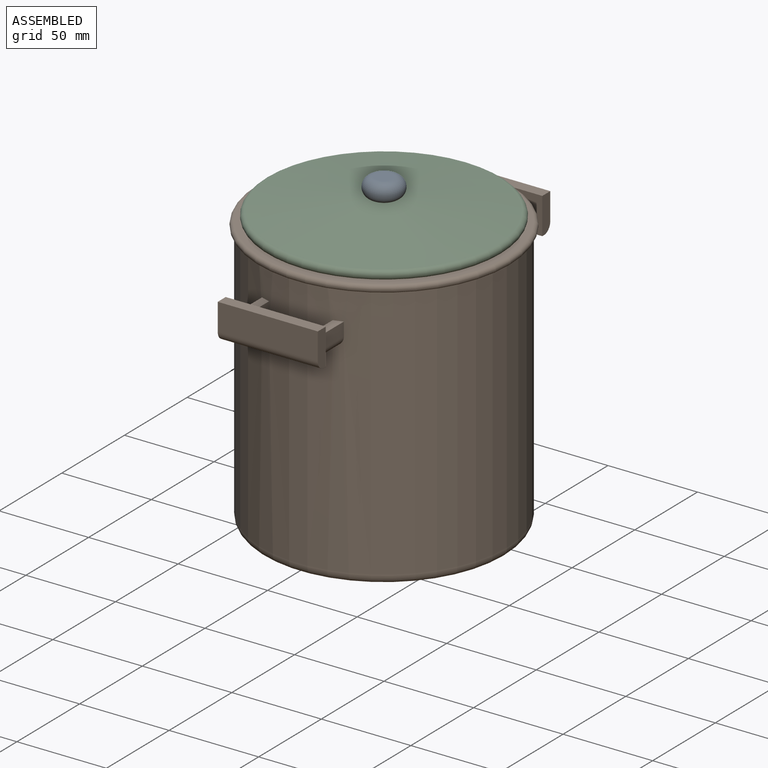
[diagram: assembled view]
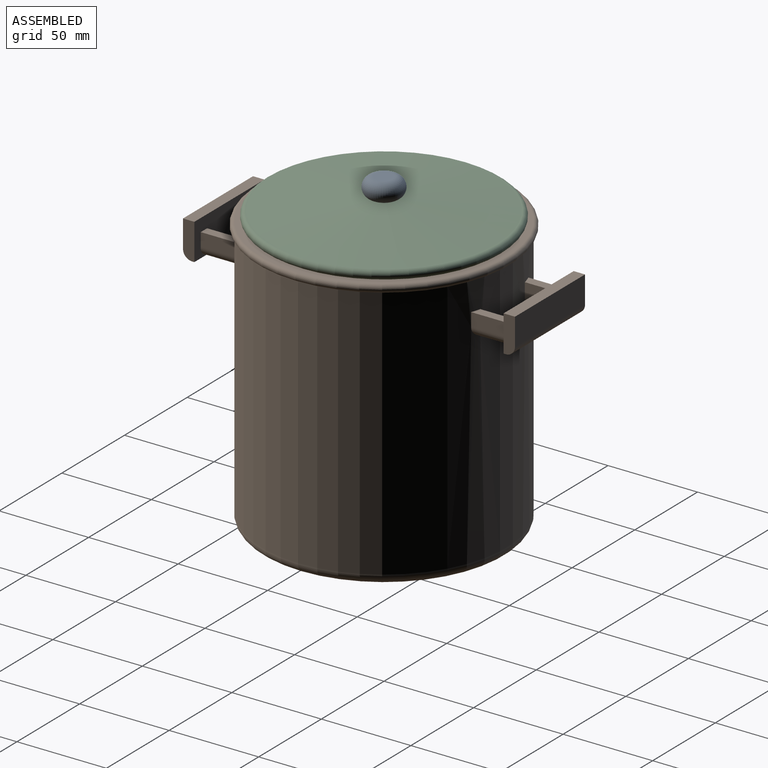
[diagram: assembled view, second angle]
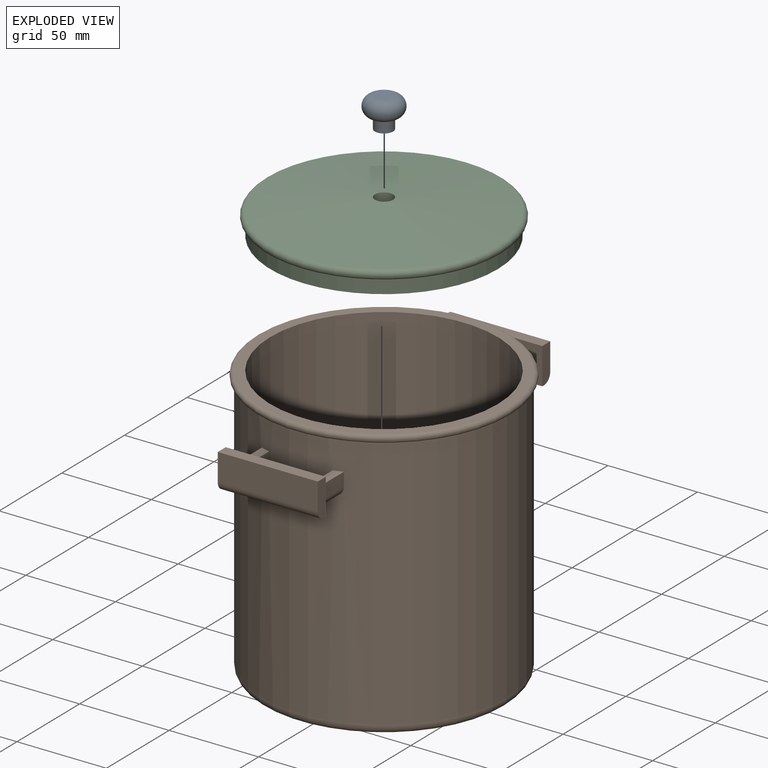
[diagram: exploded view]
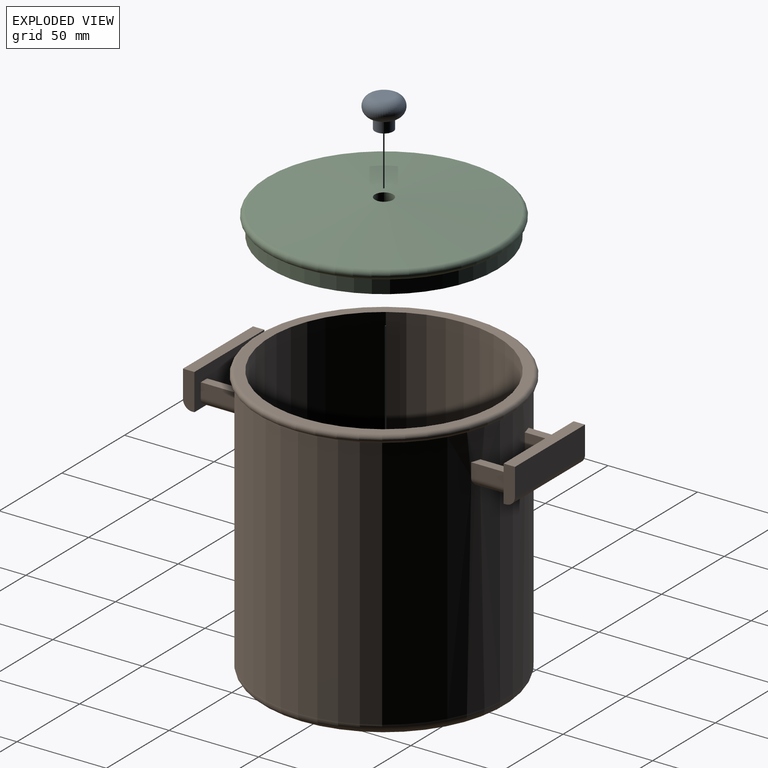
[diagram: exploded view, second angle]
ASSEMBLY  parts=3 mates=2
PART A: 4 faces, bbox 20.6x20.6x16.8 mm
  f0: torus R=5.08mm, axis (0,0,1), area 871.5mm2, adj f1,f3
  f1: plane 10.16x10.16mm, normal (0,0,1), area 81.1mm2, adj f0
  f2: plane 10.16x10.16mm, normal (0,0,-1), area 81.1mm2, adj f3
  f3: cylinder r=5.08mm len=10.16mm, axis (0,0,1), area 202.7mm2, adj f0,f2
PART B: 37 faces, bbox 153.1x185.4x152.4 mm
  f0: cylinder r=68.58mm len=142.59mm, axis (0,0,-1), area 61193.5mm2, adj f2,f3,f7,f8,f9,f10,f11,f12
  f1: plane 126.64x126.64mm, normal (0,0,-1), area 12596mm2, adj f2
  f2: torus R=63.58mm, axis (0,0,-1), area 3653.6mm2, adj f0,f1
  f3: torus R=68.58mm, axis (0,0,-1), area 2931.3mm2, adj f0,f4
  f4: plane 137.16x137.16mm, normal (0,0,1), area 2107.9mm2, adj f3,f5
  f5: cylinder r=63.5mm len=147.32mm, axis (0,0,-1), area 58778.1mm2, adj f4,f6
  f6: plane 127x127mm, normal (0,0,1), area 12667.7mm2, adj f5
  f7: plane 20.13x12.7mm, normal (1,0,0), area 255.6mm2, adj f0,f8,f13,f36
  f8: plane 21.7x5.08mm, normal (0,0,1), area 106.1mm2, adj f0,f7,f9,f13
  f9: plane 21.7x7.62mm, normal (-1,0,0), area 165.4mm2, adj f0,f8,f13,f36
  f10: plane 20.13x12.7mm, normal (-1,0,0), area 255.6mm2, adj f0,f12,f13,f35
  f11: plane 21.7x7.62mm, normal (1,0,0), area 165.4mm2, adj f0,f12,f13,f35
  f12: plane 21.7x5.08mm, normal (0,0,1), area 106.1mm2, adj f0,f10,f11,f13
  f13: plane 55.88x20.32mm, normal (0,1,0), area 1017.5mm2, adj f7,f8,f9,f10,f11,f12,f14,f16
  f14: plane 55.88x1.27mm, normal (0,0,-1), area 71mm2, adj f13,f16,f17,f31
  f15: plane 55.88x15.24mm, normal (0,-1,0), area 851.6mm2, adj f16,f17,f18,f31
  f16: plane 20.32x6.35mm, normal (-1,0,0), area 123.5mm2, adj f13,f14,f15,f18,f31
  f17: plane 20.32x6.35mm, normal (1,0,0), area 123.5mm2, adj f13,f14,f15,f18,f31
  f18: plane 55.88x6.35mm, normal (0,0,1), area 354.8mm2, adj f13,f15,f16,f17
  f19: plane 21.7x7.62mm, normal (1,0,0), area 165.4mm2, adj f0,f20,f25,f34
  f20: plane 21.7x5.08mm, normal (0,0,1), area 106.1mm2, adj f0,f19,f21,f25
  f21: plane 20.13x12.7mm, normal (-1,0,0), area 255.6mm2, adj f0,f20,f25,f34
  f22: plane 20.13x12.7mm, normal (1,0,0), area 255.6mm2, adj f0,f24,f25,f33
  f23: plane 21.7x7.62mm, normal (-1,0,0), area 165.4mm2, adj f0,f24,f25,f33
  f24: plane 21.7x5.08mm, normal (0,0,1), area 106.1mm2, adj f0,f22,f23,f25
  f25: plane 55.88x20.32mm, normal (0,-1,0), area 1017.5mm2, adj f19,f20,f21,f22,f23,f24,f26,f27
  f26: plane 55.88x1.27mm, normal (0,0,-1), area 71mm2, adj f25,f27,f29,f32
  f27: plane 20.32x6.35mm, normal (1,0,0), area 123.5mm2, adj f25,f26,f28,f30,f32
  f28: plane 55.88x6.35mm, normal (0,0,1), area 354.8mm2, adj f25,f27,f29,f30
  f29: plane 20.32x6.35mm, normal (-1,0,0), area 123.5mm2, adj f25,f26,f28,f30,f32
  f30: plane 55.88x15.24mm, normal (0,1,0), area 851.6mm2, adj f27,f28,f29,f32
  f31: cylinder r=5.08mm len=55.88mm, axis (1,0,0), area 445.9mm2, adj f14,f15,f16,f17
  f32: cylinder r=5.08mm len=55.88mm, axis (1,0,0), area 445.9mm2, adj f26,f27,f29,f30
  f33: cylinder r=5.08mm len=21.7mm, axis (0,1,0), area 168.4mm2, adj f0,f22,f23,f25
  f34: cylinder r=5.08mm len=21.7mm, axis (0,1,0), area 168.4mm2, adj f0,f19,f21,f25
  f35: cylinder r=5.08mm len=21.7mm, axis (0,-1,0), area 168.4mm2, adj f0,f10,f11,f13
  f36: cylinder r=5.08mm len=21.7mm, axis (0,-1,0), area 168.4mm2, adj f0,f7,f9,f13
PART C: 8 faces, bbox 142.6x142.6x19.4 mm
  f0: cylinder r=63.5mm len=127mm, axis (0,0,1), area 3040.2mm2, adj f1,f7
  f1: torus R=63.35mm, axis (0,0,1), area 3263mm2, adj f0,f2
  f2: cone r=5.08mm half-angle=83.4deg, axis (0,0,-1), area 12548.5mm2, adj f1,f3
  f3: cylinder r=5.08mm len=10.16mm, axis (0,0,1), area 202.7mm2, adj f2,f4
  f4: plane 10.16x10.16mm, normal (0,0,1), area 81.1mm2, adj f3
  f5: plane 116.82x116.82mm, normal (0,0,-1), area 10718.4mm2, adj f6
  f6: torus R=52.24mm, axis (0,0,1), area 3160.1mm2, adj f5,f7
  f7: plane 127x127mm, normal (0,0,-1), area 995mm2, adj f0,f6
PLACE A t=(0,0,157.84)mm
PLACE B at identity fixed
PLACE C t=(0,0,144.78)mm
MATE slider A.f0 <-> C.f0  axis (0,0,-1) through (0,0,157.84)mm
MATE slider C.f0 <-> B.f0  axis (0,0,1) through (0,0,152.4)mm
